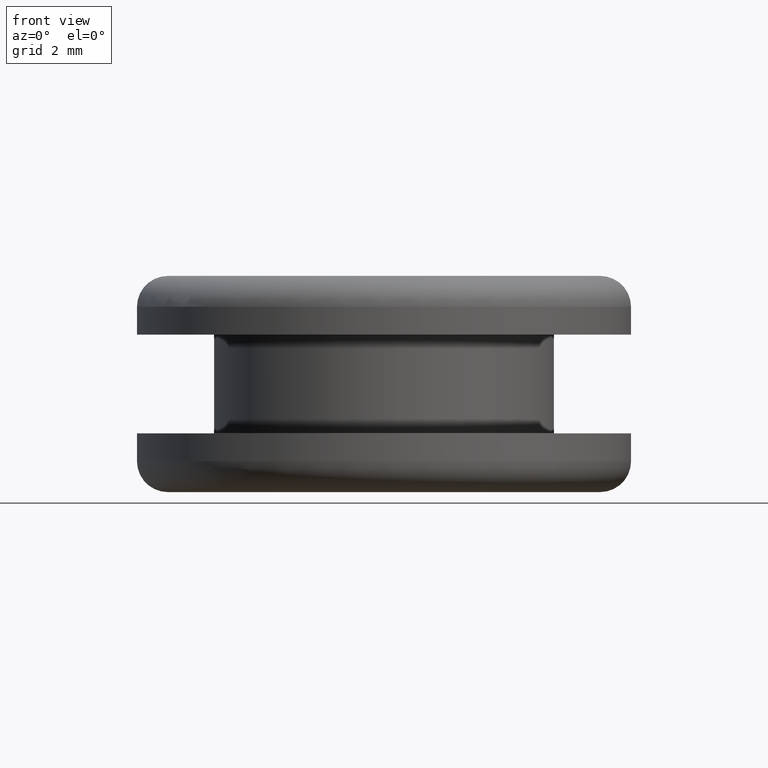
[diagram: clean part render]
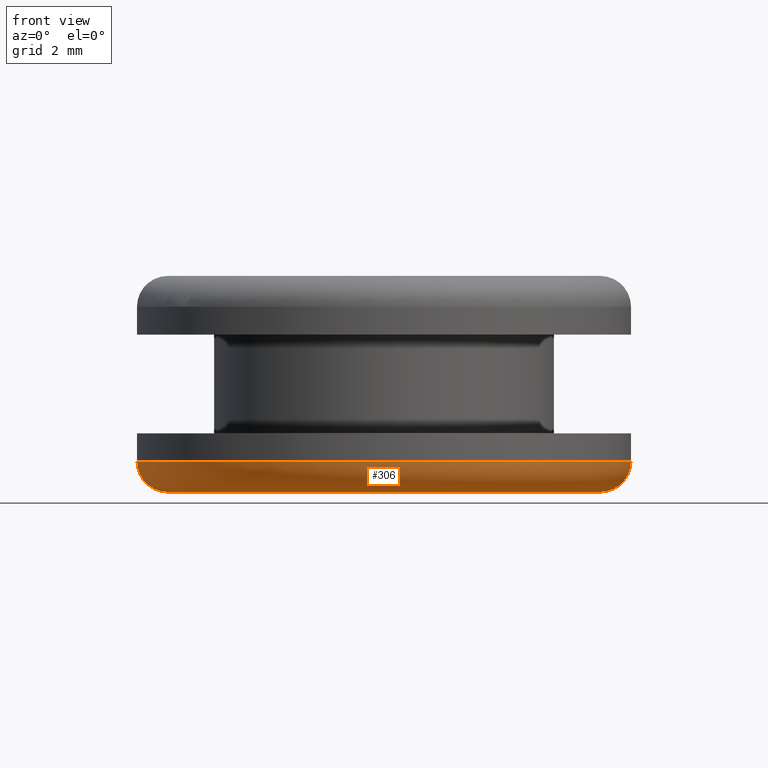
[diagram: same view with one face highlighted and labeled with its STEP entity id]
A machine part, front view. The second image highlights one B-rep face of the part: STEP entity #306.
In plain terms, the highlighted toroidal blend (fillet) surface has major radius 7 mm and minor (blend) radius 1 mm.
Its self-contained STEP definition (entity closure, byte-faithful):
#4 = ORIENTED_EDGE ( 'NONE', *, *, #198, .F. ) ;
#9 = AXIS2_PLACEMENT_3D ( 'NONE', #443, #225, #255 ) ;
#24 = VERTEX_POINT ( 'NONE', #171 ) ;
#66 = VERTEX_POINT ( 'NONE', #353 ) ;
#75 = CARTESIAN_POINT ( 'NONE',  ( 107.2049372964547000, 9.797174393025757100E-016, 141.3726952467922000 ) ) ;
#92 = EDGE_CURVE ( 'NONE', #220, #66, #293, .T. ) ;
#96 = CIRCLE ( 'NONE', #9, 6.999999999875009300 ) ;
#100 = CARTESIAN_POINT ( 'NONE',  ( 92.20493729670468500, 0.0000000000000000000, 141.3726952467922000 ) ) ;
#101 = DIRECTION ( 'NONE',  ( -1.000000000000000000, -1.224646799147352500E-016, 0.0000000000000000000 ) ) ;
#114 = DIRECTION ( 'NONE',  ( 0.0000000000000000000, 0.0000000000000000000, -1.000000000000000000 ) ) ;
#120 = CIRCLE ( 'NONE', #349, 1.000000000000000900 ) ;
#123 = ORIENTED_EDGE ( 'NONE', *, *, #139, .T. ) ;
#125 = DIRECTION ( 'NONE',  ( 0.0000000000000000000, 0.0000000000000000000, -1.000000000000000000 ) ) ;
#137 = CARTESIAN_POINT ( 'NONE',  ( 106.2049372964547000, 8.572527593878403600E-016, 141.3726952467922000 ) ) ;
#138 = TOROIDAL_SURFACE ( 'NONE', #259, 6.999999999875010200, 1.000000000000000000 ) ;
#139 = EDGE_CURVE ( 'NONE', #275, #24, #120, .T. ) ;
#146 = AXIS2_PLACEMENT_3D ( 'NONE', #137, #326, #101 ) ;
#168 = EDGE_CURVE ( 'NONE', #220, #275, #394, .T. ) ;
#171 = CARTESIAN_POINT ( 'NONE',  ( 92.20493729670468500, 0.0000000000000000000, 140.3726952467922000 ) ) ;
#177 = DIRECTION ( 'NONE',  ( -0.0000000000000000000, -1.000000000000000000, -0.0000000000000000000 ) ) ;
#198 = EDGE_CURVE ( 'NONE', #66, #24, #96, .T. ) ;
#220 = VERTEX_POINT ( 'NONE', #75 ) ;
#222 = CARTESIAN_POINT ( 'NONE',  ( 99.20493729657970100, 0.0000000000000000000, 141.3726952467922000 ) ) ;
#225 = DIRECTION ( 'NONE',  ( 0.0000000000000000000, 0.0000000000000000000, -1.000000000000000000 ) ) ;
#236 = CARTESIAN_POINT ( 'NONE',  ( 91.20493729670468500, 0.0000000000000000000, 141.3726952467922000 ) ) ;
#255 = DIRECTION ( 'NONE',  ( -1.000000000000000000, 0.0000000000000000000, 0.0000000000000000000 ) ) ;
#259 = AXIS2_PLACEMENT_3D ( 'NONE', #222, #114, #448 ) ;
#275 = VERTEX_POINT ( 'NONE', #236 ) ;
#293 = CIRCLE ( 'NONE', #146, 1.000000000000000900 ) ;
#306 = ADVANCED_FACE ( 'NONE', ( #311 ), #138, .T. ) ;
#311 = FACE_OUTER_BOUND ( 'NONE', #428, .T. ) ;
#326 = DIRECTION ( 'NONE',  ( -1.224646799147353200E-016, 1.000000000000000000, 0.0000000000000000000 ) ) ;
#349 = AXIS2_PLACEMENT_3D ( 'NONE', #100, #177, #459 ) ;
#350 = DIRECTION ( 'NONE',  ( -1.000000000000000000, 0.0000000000000000000, 0.0000000000000000000 ) ) ;
#353 = CARTESIAN_POINT ( 'NONE',  ( 106.2049372964547000, 9.184850993452081300E-016, 140.3726952467922000 ) ) ;
#393 = ORIENTED_EDGE ( 'NONE', *, *, #168, .T. ) ;
#394 = CIRCLE ( 'NONE', #396, 7.999999999875010200 ) ;
#396 = AXIS2_PLACEMENT_3D ( 'NONE', #433, #125, #350 ) ;
#428 = EDGE_LOOP ( 'NONE', ( #450, #393, #123, #4 ) ) ;
#433 = CARTESIAN_POINT ( 'NONE',  ( 99.20493729657970100, 0.0000000000000000000, 141.3726952467922000 ) ) ;
#443 = CARTESIAN_POINT ( 'NONE',  ( 99.20493729657970100, 0.0000000000000000000, 140.3726952467922000 ) ) ;
#448 = DIRECTION ( 'NONE',  ( -1.000000000000000000, 0.0000000000000000000, 0.0000000000000000000 ) ) ;
#450 = ORIENTED_EDGE ( 'NONE', *, *, #92, .F. ) ;
#459 = DIRECTION ( 'NONE',  ( 0.0000000000000000000, 0.0000000000000000000, -1.000000000000000000 ) ) ;